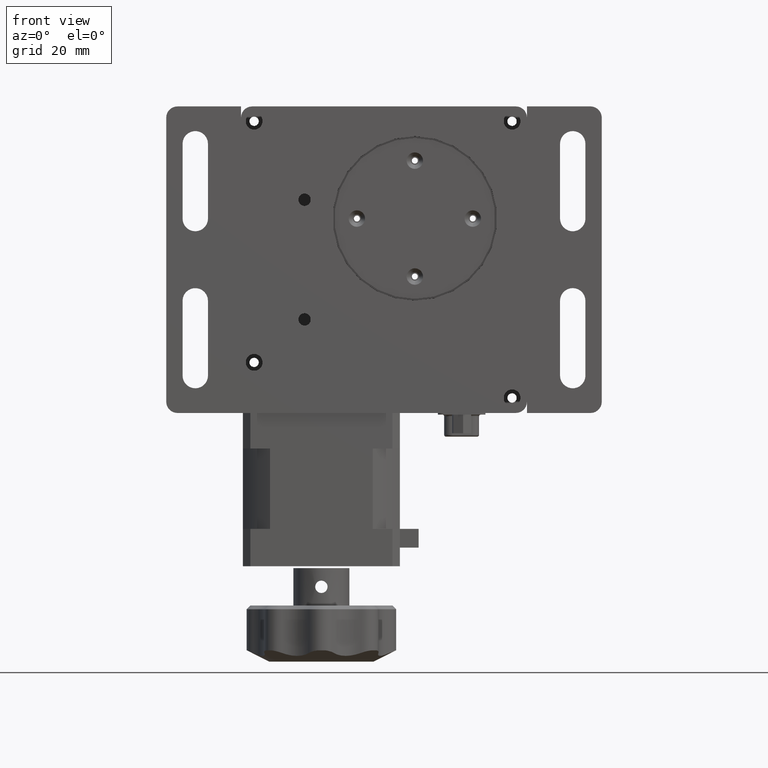
[diagram: clean part render]
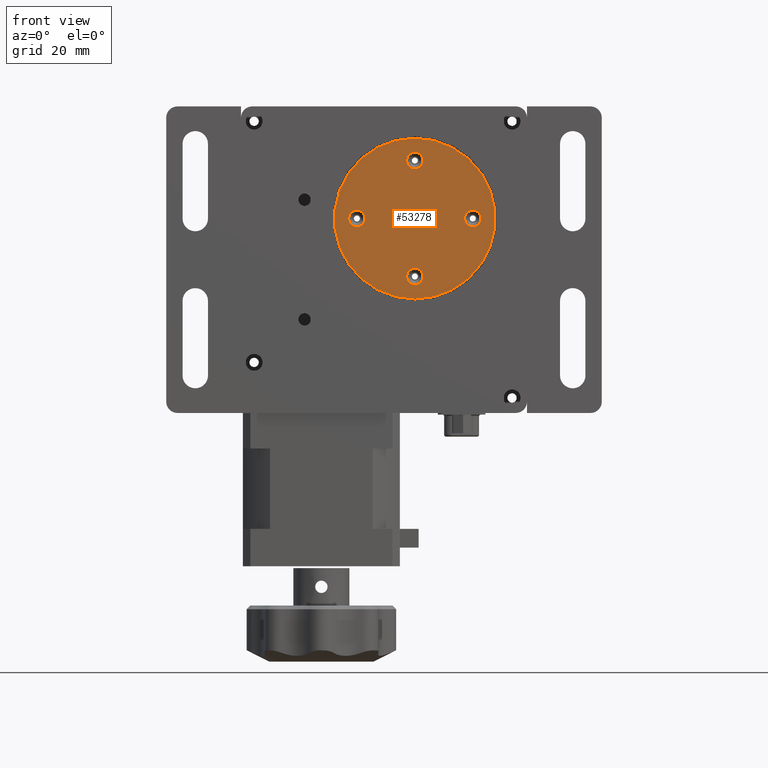
[diagram: same view with one face highlighted and labeled with its STEP entity id]
A machine part, front view. The second image highlights one B-rep face of the part: STEP entity #53278.
In plain terms, the highlighted planar face has unit normal (-0, -1, 0).
Its self-contained STEP definition (entity closure, byte-faithful):
#273 = AXIS2_PLACEMENT_3D ( 'NONE', #45147, #105734, #53854 ) ;
#901 = VERTEX_POINT ( 'NONE', #108287 ) ;
#2153 = VERTEX_POINT ( 'NONE', #96326 ) ;
#2221 = DIRECTION ( 'NONE',  ( -3.690229939805195800E-013, 0.0000000000000000000, 1.000000000000000000 ) ) ;
#2789 = CARTESIAN_POINT ( 'NONE',  ( 46.49999999998867400, -35.00000000000006400, 30.50000000001713800 ) ) ;
#3710 = DIRECTION ( 'NONE',  ( -3.677583411410000900E-013, 1.454832748907677000E-015, 1.000000000000000000 ) ) ;
#6142 = DIRECTION ( 'NONE',  ( -3.674459726387235900E-013, 0.0000000000000000000, 1.000000000000000000 ) ) ;
#10933 = EDGE_LOOP ( 'NONE', ( #31858, #35844 ) ) ;
#11498 = EDGE_LOOP ( 'NONE', ( #18099, #96578 ) ) ;
#15477 = AXIS2_PLACEMENT_3D ( 'NONE', #31847, #92446, #40610 ) ;
#16854 = CIRCLE ( 'NONE', #77619, 2.200000000000007300 ) ;
#17308 = AXIS2_PLACEMENT_3D ( 'NONE', #106099, #54220, #2221 ) ;
#17909 = CARTESIAN_POINT ( 'NONE',  ( 30.99999999998077300, -35.00000000000000000, 52.00000000001146100 ) ) ;
#18099 = ORIENTED_EDGE ( 'NONE', *, *, #69699, .F. ) ;
#18111 = EDGE_LOOP ( 'NONE', ( #101623, #41700 ) ) ;
#19669 = EDGE_CURVE ( 'NONE', #107783, #52355, #65956, .T. ) ;
#20735 = AXIS2_PLACEMENT_3D ( 'NONE', #91372, #39551, #100098 ) ;
#20792 = FACE_BOUND ( 'NONE', #65487, .T. ) ;
#24851 = CARTESIAN_POINT ( 'NONE',  ( 61.99999999998163200, -35.00000000000005700, 49.80000000002286200 ) ) ;
#26620 = DIRECTION ( 'NONE',  ( -3.674459726387235900E-013, 0.0000000000000000000, 1.000000000000000000 ) ) ;
#28086 = DIRECTION ( 'NONE',  ( -1.815261670753427200E-015, -1.000000000000000000, 1.454832748907010500E-015 ) ) ;
#29764 = VERTEX_POINT ( 'NONE', #24851 ) ;
#29891 = VERTEX_POINT ( 'NONE', #70655 ) ;
#30629 = CIRCLE ( 'NONE', #15477, 21.50000000000002500 ) ;
#30779 = EDGE_CURVE ( 'NONE', #35784, #29764, #42479, .T. ) ;
#31847 = CARTESIAN_POINT ( 'NONE',  ( 46.49999999998077300, -35.00000000000002800, 52.00000000001713800 ) ) ;
#31858 = ORIENTED_EDGE ( 'NONE', *, *, #30779, .F. ) ;
#35084 = AXIS2_PLACEMENT_3D ( 'NONE', #17909, #78561, #26620 ) ;
#35784 = VERTEX_POINT ( 'NONE', #85336 ) ;
#35844 = ORIENTED_EDGE ( 'NONE', *, *, #69175, .F. ) ;
#36593 = AXIS2_PLACEMENT_3D ( 'NONE', #107539, #55656, #3710 ) ;
#37553 = AXIS2_PLACEMENT_3D ( 'NONE', #46148, #106767, #54887 ) ;
#39551 = DIRECTION ( 'NONE',  ( -1.815261670753427200E-015, -1.000000000000000000, 1.454832748907010500E-015 ) ) ;
#40610 = DIRECTION ( 'NONE',  ( -3.676000072814104400E-013, 1.613696256722609400E-015, 1.000000000000000000 ) ) ;
#40683 = DIRECTION ( 'NONE',  ( -1.815261670753427200E-015, -1.000000000000000000, 1.454832748907010500E-015 ) ) ;
#41700 = ORIENTED_EDGE ( 'NONE', *, *, #44131, .T. ) ;
#42479 = CIRCLE ( 'NONE', #103060, 2.200000000000000600 ) ;
#43883 = FACE_BOUND ( 'NONE', #10933, .T. ) ;
#44131 = EDGE_CURVE ( 'NONE', #75896, #67051, #53521, .T. ) ;
#45147 = CARTESIAN_POINT ( 'NONE',  ( 46.49999999998077300, -35.00000000000002800, 52.00000000001713800 ) ) ;
#46148 = CARTESIAN_POINT ( 'NONE',  ( 61.99999999998082200, -35.00000000000005700, 52.00000000002285800 ) ) ;
#48313 = CARTESIAN_POINT ( 'NONE',  ( 30.99999999998157900, -35.00000000000000000, 49.80000000001145800 ) ) ;
#48713 = ORIENTED_EDGE ( 'NONE', *, *, #82235, .F. ) ;
#51660 = DIRECTION ( 'NONE',  ( -1.815261670753427200E-015, -1.000000000000000000, 1.454832748907010500E-015 ) ) ;
#52189 = EDGE_LOOP ( 'NONE', ( #48713, #112467 ) ) ;
#52355 = VERTEX_POINT ( 'NONE', #83341 ) ;
#53278 = ADVANCED_FACE ( 'NONE', ( #110306, #20792, #66987, #43883, #87234 ), #72742, .T. ) ;
#53521 = CIRCLE ( 'NONE', #273, 21.50000000000002500 ) ;
#53854 = DIRECTION ( 'NONE',  ( -3.676000072814104400E-013, 1.613696256722609400E-015, 1.000000000000000000 ) ) ;
#54220 = DIRECTION ( 'NONE',  ( -1.815261670753427200E-015, -1.000000000000000000, 1.454832748907010500E-015 ) ) ;
#54887 = DIRECTION ( 'NONE',  ( -3.690229939805206900E-013, 0.0000000000000000000, 1.000000000000000000 ) ) ;
#55588 = CIRCLE ( 'NONE', #89944, 2.200000000000007300 ) ;
#55656 = DIRECTION ( 'NONE',  ( -1.815261670753427200E-015, -1.000000000000000000, 1.454832748907009500E-015 ) ) ;
#58100 = DIRECTION ( 'NONE',  ( -1.815261670753427200E-015, -1.000000000000000000, 1.454832748907010500E-015 ) ) ;
#65487 = EDGE_LOOP ( 'NONE', ( #89800, #110811 ) ) ;
#65956 = CIRCLE ( 'NONE', #85875, 2.200000000000000600 ) ;
#66987 = FACE_BOUND ( 'NONE', #52189, .T. ) ;
#67051 = VERTEX_POINT ( 'NONE', #2789 ) ;
#67896 = CARTESIAN_POINT ( 'NONE',  ( 46.49999999998728800, -35.00000000000005000, 34.30000000001710700 ) ) ;
#69175 = EDGE_CURVE ( 'NONE', #29764, #35784, #91484, .T. ) ;
#69349 = CIRCLE ( 'NONE', #17308, 2.200000000000007300 ) ;
#69699 = EDGE_CURVE ( 'NONE', #901, #70060, #16854, .T. ) ;
#70060 = VERTEX_POINT ( 'NONE', #67896 ) ;
#70655 = CARTESIAN_POINT ( 'NONE',  ( 46.49999999997588400, -35.00000000000000000, 65.30000000001716400 ) ) ;
#72742 = PLANE ( 'NONE',  #36593 ) ;
#73990 = CIRCLE ( 'NONE', #20735, 2.200000000000007300 ) ;
#75896 = VERTEX_POINT ( 'NONE', #93082 ) ;
#77619 = AXIS2_PLACEMENT_3D ( 'NONE', #80035, #28086, #88686 ) ;
#78561 = DIRECTION ( 'NONE',  ( -1.815261670753427200E-015, -1.000000000000000000, 1.454832748907010500E-015 ) ) ;
#80035 = CARTESIAN_POINT ( 'NONE',  ( 46.49999999998647800, -35.00000000000005000, 36.50000000001711700 ) ) ;
#82235 = EDGE_CURVE ( 'NONE', #52355, #107783, #104380, .T. ) ;
#83341 = CARTESIAN_POINT ( 'NONE',  ( 30.99999999997996300, -35.00000000000000000, 54.20000000001146400 ) ) ;
#85336 = CARTESIAN_POINT ( 'NONE',  ( 61.99999999998000500, -35.00000000000005700, 54.20000000002286100 ) ) ;
#85875 = AXIS2_PLACEMENT_3D ( 'NONE', #109972, #58100, #6142 ) ;
#87234 = FACE_OUTER_BOUND ( 'NONE', #18111, .T. ) ;
#88504 = EDGE_CURVE ( 'NONE', #29891, #2153, #69349, .T. ) ;
#88686 = DIRECTION ( 'NONE',  ( -3.690229939805195800E-013, 0.0000000000000000000, 1.000000000000000000 ) ) ;
#89800 = ORIENTED_EDGE ( 'NONE', *, *, #108457, .F. ) ;
#89944 = AXIS2_PLACEMENT_3D ( 'NONE', #92521, #40683, #101247 ) ;
#91372 = CARTESIAN_POINT ( 'NONE',  ( 46.49999999997507400, -35.00000000000000000, 67.50000000001716700 ) ) ;
#91484 = CIRCLE ( 'NONE', #37553, 2.200000000000000600 ) ;
#92446 = DIRECTION ( 'NONE',  ( -1.815261670753427200E-015, -1.000000000000000000, 1.454832748907010500E-015 ) ) ;
#92521 = CARTESIAN_POINT ( 'NONE',  ( 46.49999999998647800, -35.00000000000005000, 36.50000000001711700 ) ) ;
#93082 = CARTESIAN_POINT ( 'NONE',  ( 46.49999999997287100, -34.99999999999999300, 73.50000000001713800 ) ) ;
#96326 = CARTESIAN_POINT ( 'NONE',  ( 46.49999999997426400, -35.00000000000000000, 69.70000000001718400 ) ) ;
#96578 = ORIENTED_EDGE ( 'NONE', *, *, #100848, .F. ) ;
#100098 = DIRECTION ( 'NONE',  ( -3.690229939805195800E-013, 0.0000000000000000000, 1.000000000000000000 ) ) ;
#100848 = EDGE_CURVE ( 'NONE', #70060, #901, #55588, .T. ) ;
#101247 = DIRECTION ( 'NONE',  ( -3.690229939805195800E-013, 0.0000000000000000000, 1.000000000000000000 ) ) ;
#101623 = ORIENTED_EDGE ( 'NONE', *, *, #105061, .T. ) ;
#103060 = AXIS2_PLACEMENT_3D ( 'NONE', #103479, #51660, #112229 ) ;
#103479 = CARTESIAN_POINT ( 'NONE',  ( 61.99999999998082200, -35.00000000000005700, 52.00000000002285800 ) ) ;
#104380 = CIRCLE ( 'NONE', #35084, 2.200000000000000600 ) ;
#105061 = EDGE_CURVE ( 'NONE', #67051, #75896, #30629, .T. ) ;
#105734 = DIRECTION ( 'NONE',  ( -1.815261670753427200E-015, -1.000000000000000000, 1.454832748907010500E-015 ) ) ;
#106099 = CARTESIAN_POINT ( 'NONE',  ( 46.49999999997507400, -35.00000000000000000, 67.50000000001716700 ) ) ;
#106767 = DIRECTION ( 'NONE',  ( -1.815261670753427200E-015, -1.000000000000000000, 1.454832748907010500E-015 ) ) ;
#107539 = CARTESIAN_POINT ( 'NONE',  ( 46.49999999998077300, -35.00000000000002800, 52.00000000001713800 ) ) ;
#107783 = VERTEX_POINT ( 'NONE', #48313 ) ;
#108287 = CARTESIAN_POINT ( 'NONE',  ( 46.49999999998566100, -35.00000000000005000, 38.70000000001712700 ) ) ;
#108457 = EDGE_CURVE ( 'NONE', #2153, #29891, #73990, .T. ) ;
#109972 = CARTESIAN_POINT ( 'NONE',  ( 30.99999999998077300, -35.00000000000000000, 52.00000000001146100 ) ) ;
#110306 = FACE_BOUND ( 'NONE', #11498, .T. ) ;
#110811 = ORIENTED_EDGE ( 'NONE', *, *, #88504, .F. ) ;
#112229 = DIRECTION ( 'NONE',  ( -3.690229939805206900E-013, 0.0000000000000000000, 1.000000000000000000 ) ) ;
#112467 = ORIENTED_EDGE ( 'NONE', *, *, #19669, .F. ) ;